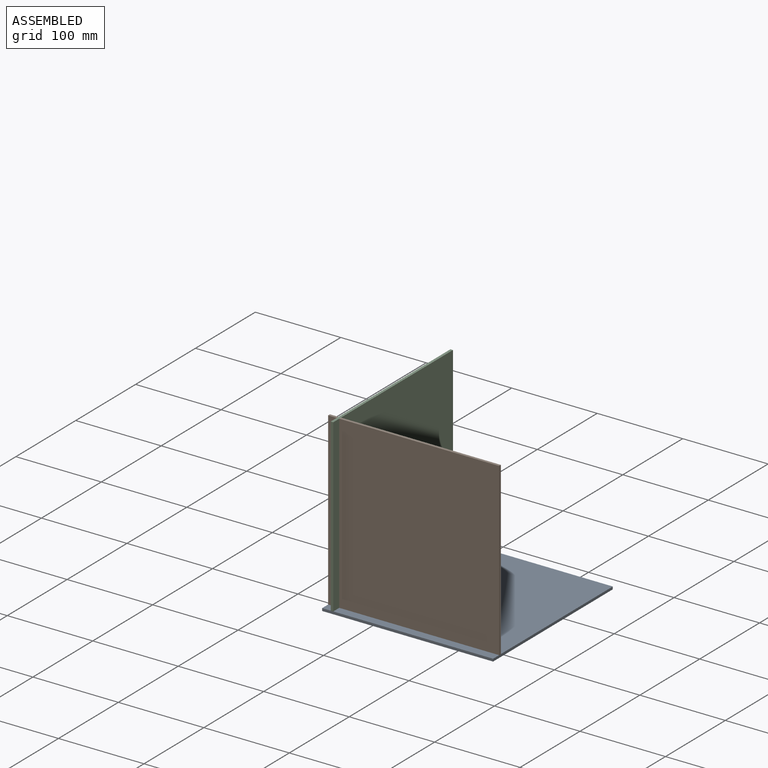
[diagram: assembled view]
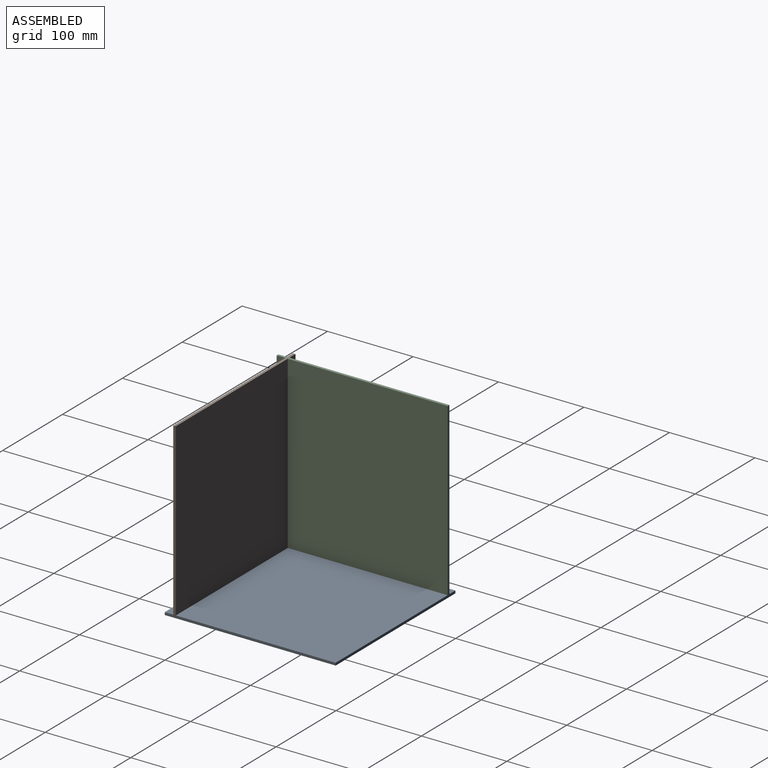
[diagram: assembled view, second angle]
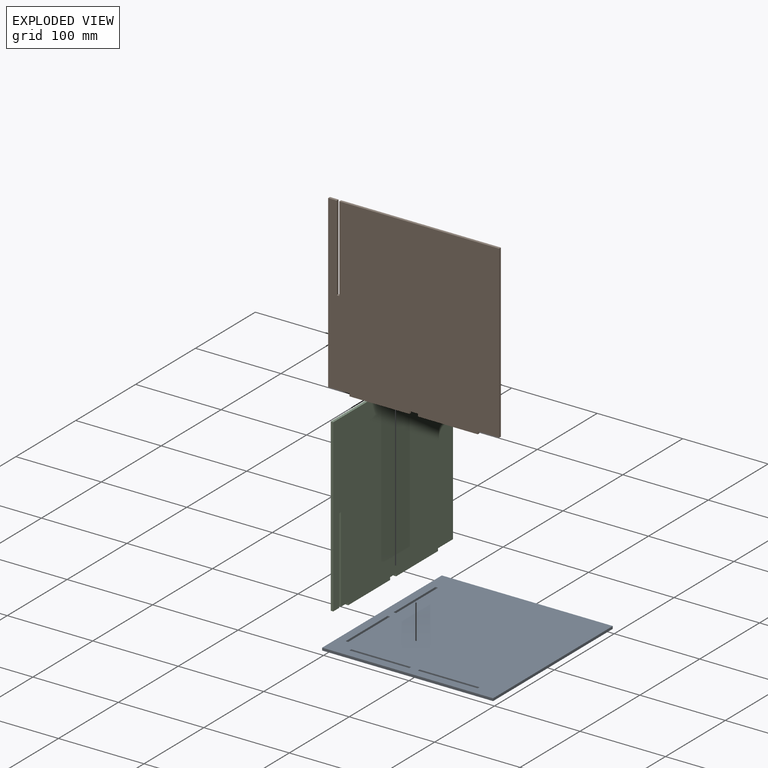
[diagram: exploded view]
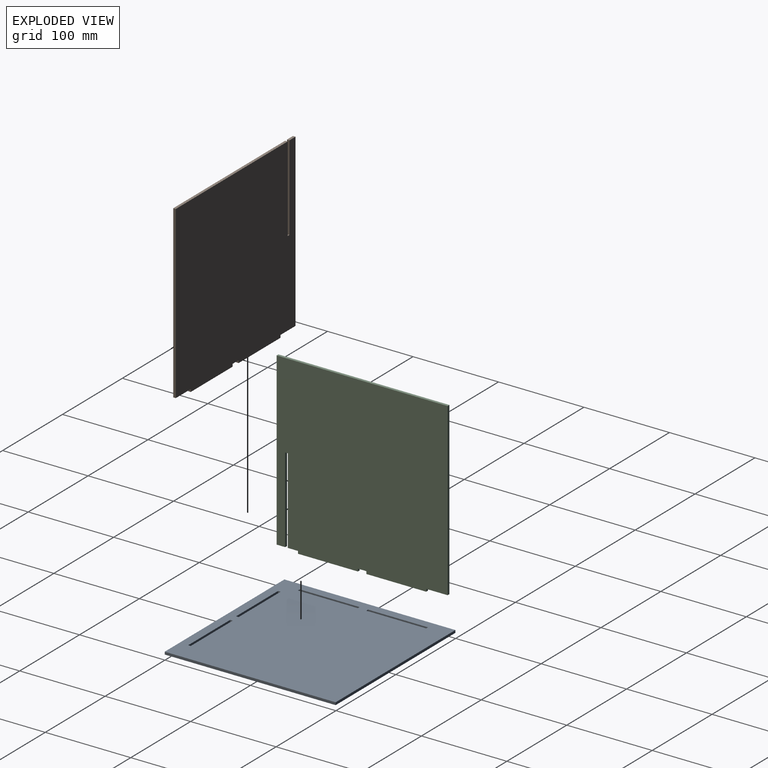
[diagram: exploded view, second angle]
ASSEMBLY  parts=3 mates=6
PART A: 22 faces, bbox 200x200x3 mm
  f0: plane 200x3mm, normal (0,1,0), area 600mm2, adj f1,f19,f20,f21
  f1: plane 200x3mm, normal (-1,0,0), area 600mm2, adj f0,f2,f20,f21
  f2: plane 200x3mm, normal (0,-1,0), area 600mm2, adj f1,f19,f20,f21
  f3: plane 70x3mm, normal (1,0,0), area 210mm2, adj f4,f15,f20,f21
  f4: plane 3x3mm, normal (0,-1,0), area 9mm2, adj f3,f5,f20,f21
  f5: plane 70x3mm, normal (-1,0,0), area 210mm2, adj f4,f15,f20,f21
  f6: plane 70x3mm, normal (1,0,0), area 210mm2, adj f7,f16,f20,f21
  f7: plane 3x3mm, normal (0,-1,0), area 9mm2, adj f6,f8,f20,f21
  f8: plane 70x3mm, normal (-1,0,0), area 210mm2, adj f7,f16,f20,f21
  f9: plane 70x3mm, normal (0,1,0), area 210mm2, adj f10,f17,f20,f21
  f10: plane 3x3mm, normal (1,0,0), area 9mm2, adj f9,f11,f20,f21
  f11: plane 70x3mm, normal (0,-1,0), area 210mm2, adj f10,f17,f20,f21
  f12: plane 70x3mm, normal (0,1,0), area 210mm2, adj f13,f18,f20,f21
  f13: plane 3x3mm, normal (1,0,0), area 9mm2, adj f12,f14,f20,f21
  f14: plane 70x3mm, normal (0,-1,0), area 210mm2, adj f13,f18,f20,f21
  f15: plane 3x3mm, normal (0,1,0), area 9mm2, adj f3,f5,f20,f21
  f16: plane 3x3mm, normal (0,1,0), area 9mm2, adj f6,f8,f20,f21
  f17: plane 3x3mm, normal (-1,0,0), area 9mm2, adj f9,f11,f20,f21
  f18: plane 3x3mm, normal (-1,0,0), area 9mm2, adj f12,f14,f20,f21
  f19: plane 200x3mm, normal (1,0,0), area 600mm2, adj f0,f2,f20,f21
  f20: plane 200x200mm, normal (0,0,1), area 39160mm2, adj f0,f1,f2,f3,f4,f5,f6,f7
  f21: plane 200x200mm, normal (0,0,-1), area 39160mm2, adj f0,f1,f2,f3,f4,f5,f6,f7
PART B: 18 faces, bbox 200x3x203 mm
  f0: plane 10x3mm, normal (0,0,-1), area 30mm2, adj f1,f15,f16,f17
  f1: plane 100x3mm, normal (1,0,0), area 300mm2, adj f0,f2,f16,f17
  f2: plane 3x3mm, normal (0,0,-1), area 9mm2, adj f1,f3,f16,f17
  f3: plane 100x3mm, normal (-1,0,0), area 300mm2, adj f2,f4,f16,f17
  f4: plane 187x3mm, normal (0,0,-1), area 561mm2, adj f3,f5,f16,f17
  f5: plane 200x3mm, normal (1,0,0), area 600mm2, adj f4,f6,f16,f17
  f6: plane 25x3mm, normal (0,0,1), area 75mm2, adj f5,f7,f16,f17
  f7: plane 3x3mm, normal (1,0,0), area 9mm2, adj f6,f8,f16,f17
  f8: plane 70x3mm, normal (0,0,1), area 210mm2, adj f7,f9,f16,f17
  f9: plane 3x3mm, normal (-1,0,0), area 9mm2, adj f8,f10,f16,f17
  f10: plane 10x3mm, normal (0,0,1), area 30mm2, adj f9,f11,f16,f17
  f11: plane 3x3mm, normal (1,0,0), area 9mm2, adj f10,f12,f16,f17
  f12: plane 70x3mm, normal (0,0,1), area 210mm2, adj f11,f13,f16,f17
  f13: plane 3x3mm, normal (-1,0,0), area 9mm2, adj f12,f14,f16,f17
  f14: plane 25x3mm, normal (0,0,1), area 75mm2, adj f13,f15,f16,f17
  f15: plane 200x3mm, normal (-1,0,0), area 600mm2, adj f0,f14,f16,f17
  f16: plane 203x200mm, normal (0,-1,0), area 40120mm2, adj f0,f1,f2,f3,f4,f5,f6,f7
  f17: plane 203x200mm, normal (0,1,0), area 40120mm2, adj f0,f1,f2,f3,f4,f5,f6,f7
PART C: 18 faces, bbox 200x3x203 mm
  f0: plane 10x3mm, normal (0,0,-1), area 30mm2, adj f1,f15,f16,f17
  f1: plane 3x3mm, normal (-1,0,0), area 9mm2, adj f0,f2,f16,f17
  f2: plane 70x3mm, normal (0,0,-1), area 210mm2, adj f1,f3,f16,f17
  f3: plane 3x3mm, normal (1,0,0), area 9mm2, adj f2,f4,f16,f17
  f4: plane 25x3mm, normal (0,0,-1), area 75mm2, adj f3,f5,f16,f17
  f5: plane 200x3mm, normal (1,0,0), area 600mm2, adj f4,f6,f16,f17
  f6: plane 200x3mm, normal (0,0,1), area 600mm2, adj f5,f7,f16,f17
  f7: plane 200x3mm, normal (-1,0,0), area 600mm2, adj f6,f8,f16,f17
  f8: plane 10x3mm, normal (0,0,-1), area 30mm2, adj f7,f9,f16,f17
  f9: plane 100x3mm, normal (1,0,0), area 300mm2, adj f8,f10,f16,f17
  f10: plane 3x3mm, normal (0,0,-1), area 9mm2, adj f9,f11,f16,f17
  f11: plane 100x3mm, normal (-1,0,0), area 300mm2, adj f10,f12,f16,f17
  f12: plane 12x3mm, normal (0,0,-1), area 36mm2, adj f11,f13,f16,f17
  f13: plane 3x3mm, normal (-1,0,0), area 9mm2, adj f12,f14,f16,f17
  f14: plane 70x3mm, normal (0,0,-1), area 210mm2, adj f13,f15,f16,f17
  f15: plane 3x3mm, normal (1,0,0), area 9mm2, adj f0,f14,f16,f17
  f16: plane 203x200mm, normal (0,-1,0), area 40120mm2, adj f0,f1,f2,f3,f4,f5,f6,f7
  f17: plane 203x200mm, normal (0,1,0), area 40120mm2, adj f0,f1,f2,f3,f4,f5,f6,f7
PLACE A t=(-100.95,-100.95,-3)mm
PLACE B rot(axis=(-1,0,0),180deg) t=(-19.09,-90.95,146.71)mm
PLACE C rot(axis=(0,0,1),90deg) t=(-90.95,-19.09,53.29)mm
MATE planar C.f11 <-> B.f16  axis (0,-1,0) through (-89.45,-87.95,50)mm
MATE planar C.f10 <-> B.f2  axis (0,0,-1) through (-89.45,-89.45,100)mm
MATE planar C.f16 <-> B.f3  axis (1,0,0) through (-87.95,-0.29,99.31)mm
MATE planar B.f15 <-> A.f1  axis (-1,0,0) through (-100.95,-89.45,100)mm
MATE planar C.f7 <-> A.f2  axis (0,-1,0) through (-89.45,-100.95,100)mm
MATE planar B.f14 <-> A.f20  axis (0,0,-1) through (-88.45,-89.45,0)mm
